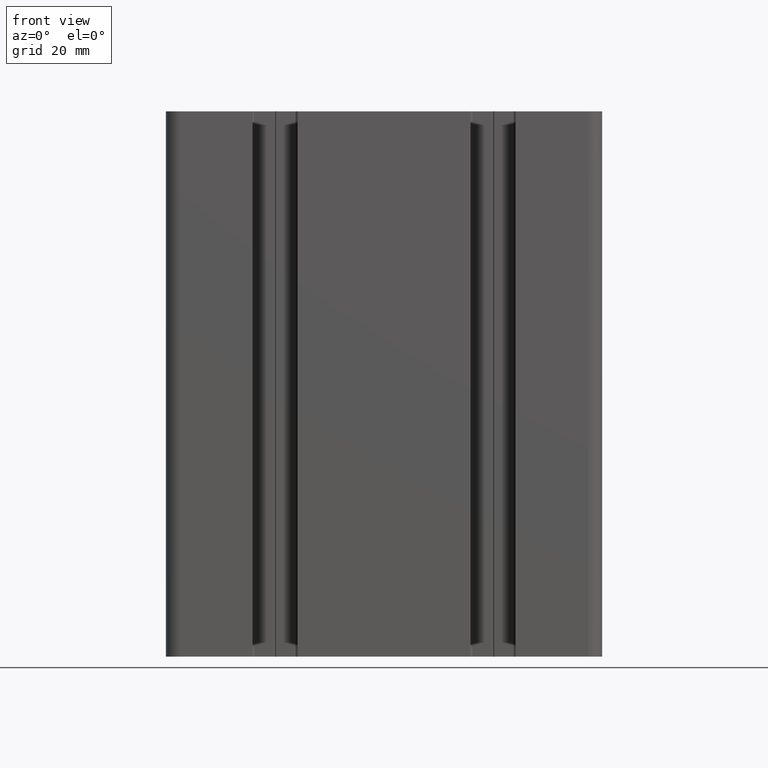
[diagram: clean part render]
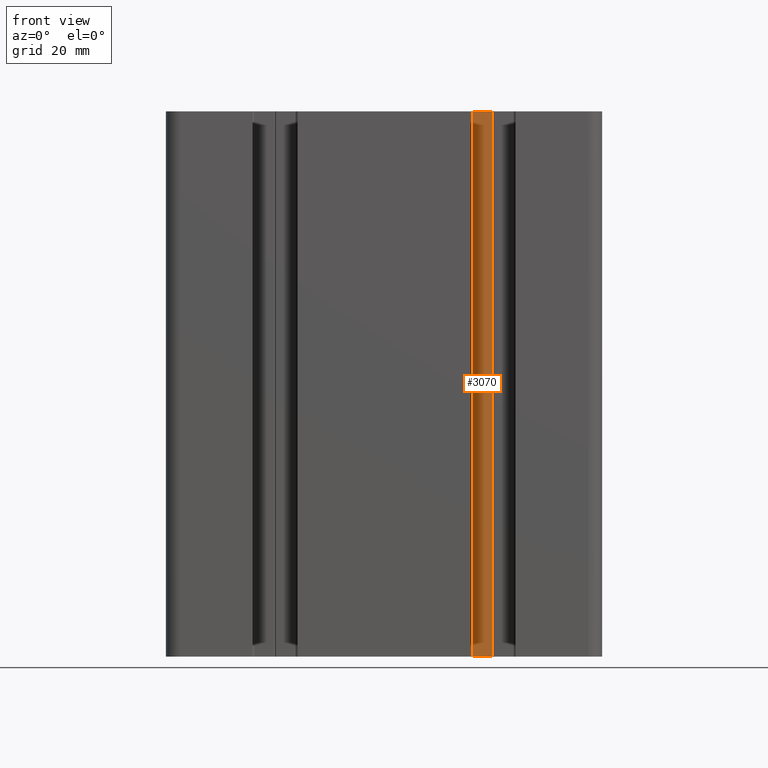
[diagram: same view with one face highlighted and labeled with its STEP entity id]
A machine part, front view. The second image highlights one B-rep face of the part: STEP entity #3070.
In plain terms, the highlighted planar face has unit normal (-0, -1, 0).
Its self-contained STEP definition (entity closure, byte-faithful):
#91=PLANE('',#3320);
#232=FACE_OUTER_BOUND('',#388,.T.);
#388=EDGE_LOOP('',(#2419,#2420,#2421,#2422));
#674=LINE('',#4920,#1008);
#675=LINE('',#4923,#1009);
#676=LINE('',#4925,#1010);
#677=LINE('',#4926,#1011);
#1008=VECTOR('',#4022,100.);
#1009=VECTOR('',#4025,3.59999999999971);
#1010=VECTOR('',#4026,3.59999999999971);
#1011=VECTOR('',#4027,100.);
#1451=VERTEX_POINT('',#4916);
#1452=VERTEX_POINT('',#4918);
#1453=VERTEX_POINT('',#4922);
#1454=VERTEX_POINT('',#4924);
#1860=EDGE_CURVE('',#1451,#1452,#674,.T.);
#1861=EDGE_CURVE('',#1453,#1451,#675,.T.);
#1862=EDGE_CURVE('',#1454,#1452,#676,.T.);
#1863=EDGE_CURVE('',#1453,#1454,#677,.T.);
#2419=ORIENTED_EDGE('',*,*,#1861,.T.);
#2420=ORIENTED_EDGE('',*,*,#1860,.T.);
#2421=ORIENTED_EDGE('',*,*,#1862,.F.);
#2422=ORIENTED_EDGE('',*,*,#1863,.F.);
#3070=ADVANCED_FACE('',(#232),#91,.T.);
#3320=AXIS2_PLACEMENT_3D('',#4921,#4023,#4024);
#4022=DIRECTION('',(0.,0.,1.));
#4023=DIRECTION('center_axis',(-6.41462192005698E-14,-1.,0.));
#4024=DIRECTION('ref_axis',(1.,-6.4126481902349E-14,0.));
#4025=DIRECTION('',(1.,-6.41462192005698E-14,0.));
#4026=DIRECTION('',(1.,-6.41462192005698E-14,0.));
#4027=DIRECTION('',(0.,0.,1.));
#4916=CARTESIAN_POINT('',(19.7999999999996,-5.50000000000022,0.));
#4918=CARTESIAN_POINT('',(19.7999999999996,-5.50000000000022,100.));
#4920=CARTESIAN_POINT('',(19.7999999999996,-5.50000000000022,0.));
#4921=CARTESIAN_POINT('Origin',(16.1999999999999,-5.49999999999999,0.));
#4922=CARTESIAN_POINT('',(16.1999999999999,-5.49999999999999,0.));
#4923=CARTESIAN_POINT('',(16.1999999999999,-5.49999999999999,0.));
#4924=CARTESIAN_POINT('',(16.1999999999999,-5.49999999999999,100.));
#4925=CARTESIAN_POINT('',(16.1999999999999,-5.49999999999999,100.));
#4926=CARTESIAN_POINT('',(16.1999999999999,-5.49999999999999,0.));